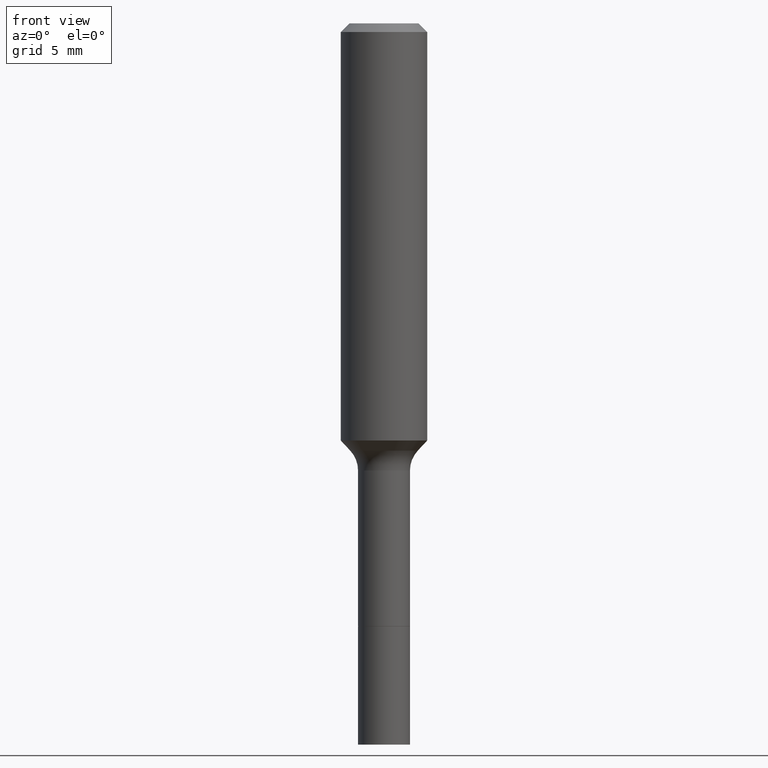
[diagram: clean part render]
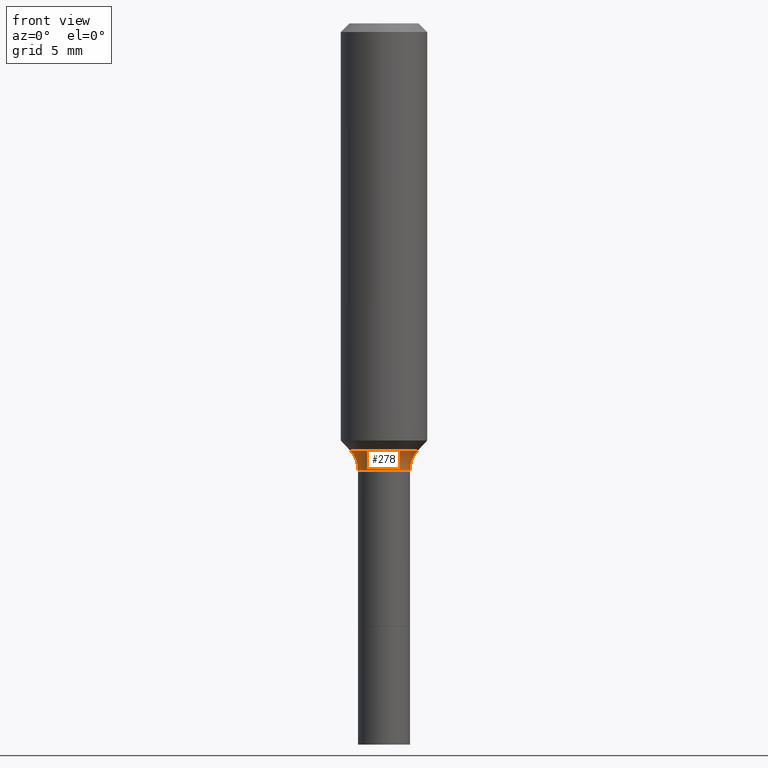
[diagram: same view with one face highlighted and labeled with its STEP entity id]
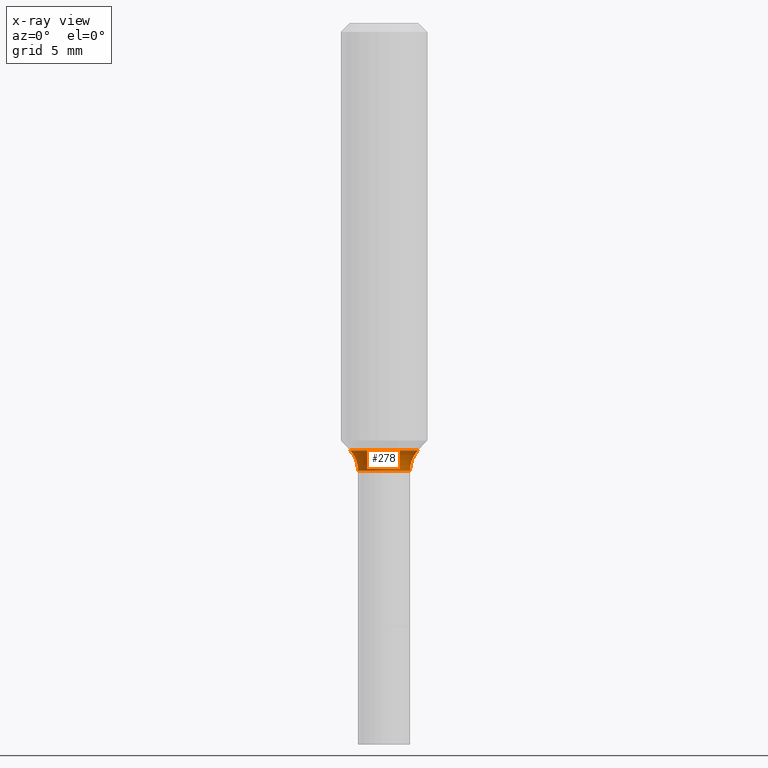
[diagram: x-ray of the same camera — body ghosted, the highlighted face saturated]
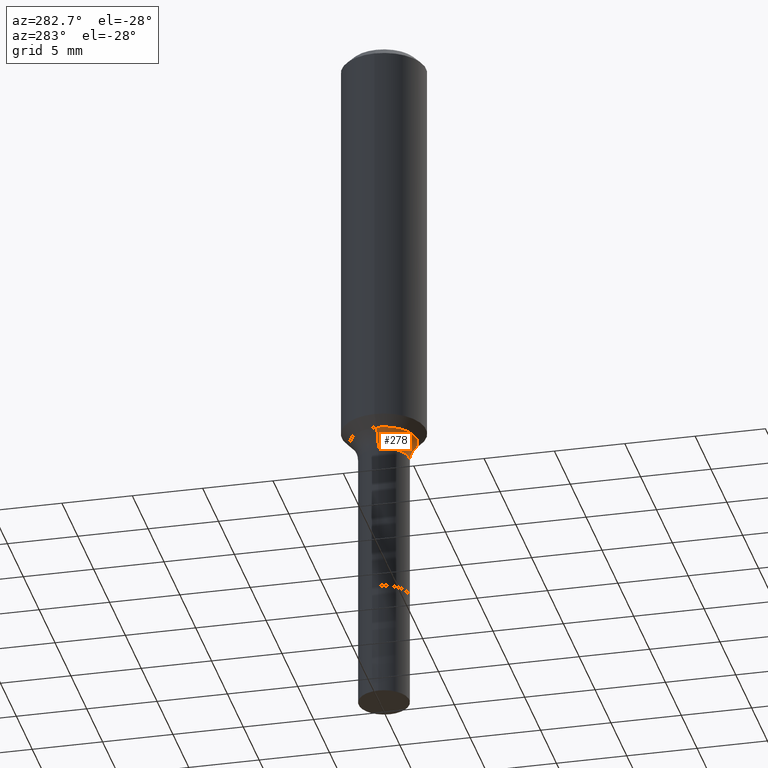
[diagram: same view with one face highlighted and labeled with its STEP entity id]
A machine part, front view. The second image highlights one B-rep face of the part: STEP entity #278.
The next image is the same camera in x-ray: the body ghosted, the highlighted face saturated — about 0% of this face is hidden behind the body in this view.
A second angle (auxiliary view) of the same face is appended — the face is thin or edge-on in the first view.
In plain terms, the highlighted toroidal blend (fillet) surface has major radius 3.8316 mm and minor (blend) radius 2.032 mm.
Its self-contained STEP definition (entity closure, byte-faithful):
#4 = EDGE_CURVE ( 'NONE', #164, #142, #250, .T. ) ;
#7 = DIRECTION ( 'NONE',  ( -6.982962677686266711E-15, -1.000000000000000000, 3.491481338843145583E-15 ) ) ;
#11 = ORIENTED_EDGE ( 'NONE', *, *, #4, .T. ) ;
#13 = VERTEX_POINT ( 'NONE', #202 ) ;
#29 = CIRCLE ( 'NONE', #167, 0.08000000000000000167 ) ;
#32 = DIRECTION ( 'NONE',  ( 1.000000000000000000, -6.982962677686269077E-15, 0.000000000000000000 ) ) ;
#53 = EDGE_CURVE ( 'NONE', #175, #164, #76, .T. ) ;
#55 = TOROIDAL_SURFACE ( 'NONE', #213, 0.1508499999999999563, 0.08000000000000000167 ) ;
#76 = CIRCLE ( 'NONE', #338, 0.08000000000000000167 ) ;
#84 = AXIS2_PLACEMENT_3D ( 'NONE', #311, #174, #326 ) ;
#96 = DIRECTION ( 'NONE',  ( -2.445468806185136597E-29, 3.491481338843145583E-15, 1.000000000000000000 ) ) ;
#101 = DIRECTION ( 'NONE',  ( 7.105427357601001859E-15, 1.000000000000000000, -3.491481338843145583E-15 ) ) ;
#142 = VERTEX_POINT ( 'NONE', #337 ) ;
#164 = VERTEX_POINT ( 'NONE', #341 ) ;
#167 = AXIS2_PLACEMENT_3D ( 'NONE', #370, #7, #321 ) ;
#169 = ORIENTED_EDGE ( 'NONE', *, *, #53, .T. ) ;
#174 = DIRECTION ( 'NONE',  ( -2.445468806185136597E-29, 3.491481338843145583E-15, 1.000000000000000000 ) ) ;
#175 = VERTEX_POINT ( 'NONE', #508 ) ;
#202 = CARTESIAN_POINT ( 'NONE',  ( 0.09234170387046626571, -4.715676881997094379E-15, -1.165940131195000173 ) ) ;
#213 = AXIS2_PLACEMENT_3D ( 'NONE', #218, #214, #323 ) ;
#214 = DIRECTION ( 'NONE',  ( -2.445468806185136597E-29, 3.491481338843145583E-15, 1.000000000000000000 ) ) ;
#218 = CARTESIAN_POINT ( 'NONE',  ( 2.984694677948959472E-29, -4.261352974058059028E-15, -1.220499999999999918 ) ) ;
#245 = EDGE_CURVE ( 'NONE', #175, #13, #381, .T. ) ;
#250 = CIRCLE ( 'NONE', #456, 0.07084999999999994080 ) ;
#254 = CARTESIAN_POINT ( 'NONE',  ( -0.1508499999999999563, -3.189499257163948010E-15, -1.220499999999999918 ) ) ;
#278 = ADVANCED_FACE ( 'NONE', ( #290 ), #55, .F. ) ;
#284 = ORIENTED_EDGE ( 'NONE', *, *, #245, .F. ) ;
#290 = FACE_OUTER_BOUND ( 'NONE', #403, .T. ) ;
#299 = EDGE_CURVE ( 'NONE', #13, #142, #29, .T. ) ;
#311 = CARTESIAN_POINT ( 'NONE',  ( 2.851270220716778580E-29, -4.070858210275671756E-15, -1.165940131195000173 ) ) ;
#321 = DIRECTION ( 'NONE',  ( 1.000000000000000000, -6.982962677686271444E-15, 0.000000000000000000 ) ) ;
#323 = DIRECTION ( 'NONE',  ( 1.000000000000000000, -6.982962677686266711E-15, 4.883557194083112901E-29 ) ) ;
#326 = DIRECTION ( 'NONE',  ( 1.000000000000000000, -6.982962677686263555E-15, 0.000000000000000000 ) ) ;
#337 = CARTESIAN_POINT ( 'NONE',  ( 0.07084999999999994080, -4.756095879772131283E-15, -1.220499999999999918 ) ) ;
#338 = AXIS2_PLACEMENT_3D ( 'NONE', #254, #101, #410 ) ;
#341 = CARTESIAN_POINT ( 'NONE',  ( -0.07084999999999994080, -4.499000359941485328E-15, -1.220499999999999918 ) ) ;
#370 = CARTESIAN_POINT ( 'NONE',  ( 0.1508499999999999563, -5.314732893987031357E-15, -1.220499999999999918 ) ) ;
#381 = CIRCLE ( 'NONE', #84, 0.09234170387046626571 ) ;
#390 = CARTESIAN_POINT ( 'NONE',  ( 2.984694677948959472E-29, -4.261352974058059028E-15, -1.220499999999999918 ) ) ;
#403 = EDGE_LOOP ( 'NONE', ( #284, #169, #11, #486 ) ) ;
#410 = DIRECTION ( 'NONE',  ( -1.000000000000000000, 7.105427357600997914E-15, 0.000000000000000000 ) ) ;
#456 = AXIS2_PLACEMENT_3D ( 'NONE', #390, #96, #32 ) ;
#486 = ORIENTED_EDGE ( 'NONE', *, *, #299, .F. ) ;
#508 = CARTESIAN_POINT ( 'NONE',  ( -0.09234170387046626571, -3.414730941346970530E-15, -1.165940131195000173 ) ) ;